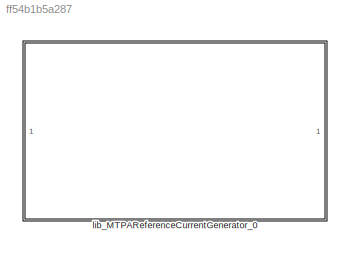
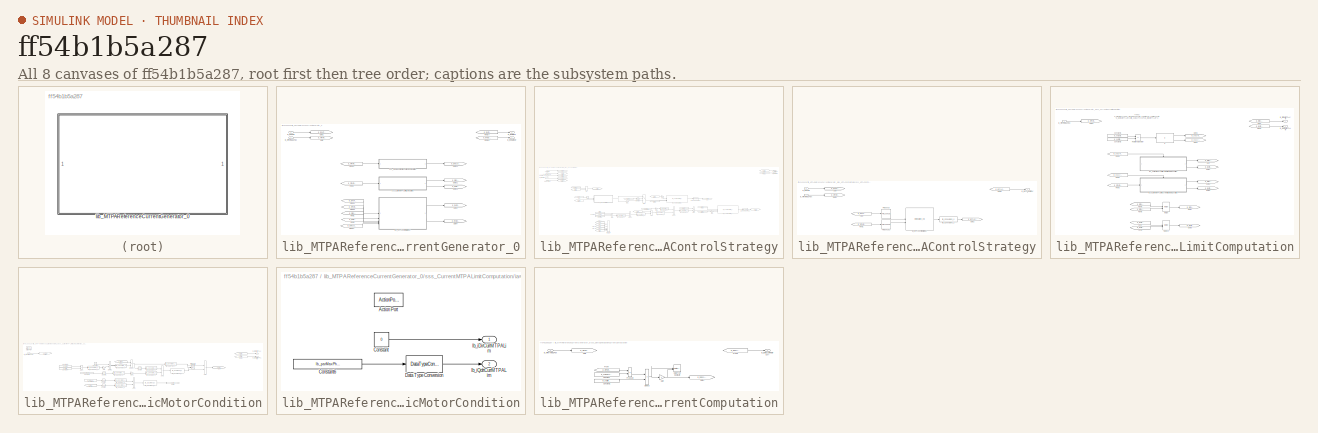
[diagram: thumbnail index - all 8 canvases of the model, root first then tree order]
MODEL slx_ff54b1b5a287
KIND library
CONFIG AbsTol = auto
CONFIG EnableMultiTasking = off
CONFIG FixedStep = auto
CONFIG MaxStep = auto
CONFIG MinStep = auto
CONFIG RelTol = 1e-3
CONFIG SampleTimeConstraint = Unconstrained
CONFIG SolverName = VariableStepAuto
CONFIG StartTime = 0.0
CONFIG StopTime = 10.0
BLOCK [SubSystem] lib_MTPAReferenceCurrentGenerator_0
  LibrarySourceBlock = lib_reference_current_generator/lib_ReferenceCurrentGenerator_0
BLOCK [From] lib_MTPAReferenceCurrentGenerator_0/From1
  GotoTag = lb_iDirCurrMTPALim
BLOCK [From] lib_MTPAReferenceCurrentGenerator_0/From14
  GotoTag = lb_iRefDirCurr
BLOCK [From] lib_MTPAReferenceCurrentGenerator_0/From15
  GotoTag = lb_iRefQdrtCurr
BLOCK [From] lib_MTPAReferenceCurrentGenerator_0/From2
  GotoTag = lb_mfPermMagFlux
BLOCK [From] lib_MTPAReferenceCurrentGenerator_0/From20
  GotoTag = lb_mfPermMagFlux
BLOCK [From] lib_MTPAReferenceCurrentGenerator_0/From21
  GotoTag = lb_tqRefTrq
BLOCK [From] lib_MTPAReferenceCurrentGenerator_0/From3
  GotoTag = lb_iQdrtCurrMTPALim
BLOCK [From] lib_MTPAReferenceCurrentGenerator_0/From42
  GotoTag = lb_mfPermMagFlux
BLOCK [From] lib_MTPAReferenceCurrentGenerator_0/From44
  GotoTag = lb_iDmgzDirCurr
BLOCK [Goto] lib_MTPAReferenceCurrentGenerator_0/Goto
  GotoTag = lb_mfPermMagFlux
BLOCK [Goto] lib_MTPAReferenceCurrentGenerator_0/Goto1
  GotoTag = lb_tqRefTrq
BLOCK [Goto] lib_MTPAReferenceCurrentGenerator_0/Goto21
  GotoTag = lb_iQdrtCurrMTPALim
BLOCK [Goto] lib_MTPAReferenceCurrentGenerator_0/Goto24
  GotoTag = lb_iDmgzDirCurr
BLOCK [Goto] lib_MTPAReferenceCurrentGenerator_0/Goto3
  GotoTag = lb_iRefDirCurr
BLOCK [Goto] lib_MTPAReferenceCurrentGenerator_0/Goto31
  GotoTag = lb_iDirCurrMTPALim
BLOCK [Goto] lib_MTPAReferenceCurrentGenerator_0/Goto4
  GotoTag = lb_iRefQdrtCurr
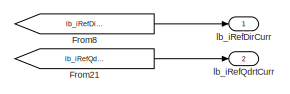
[diagram: lib_MTPAReferenceCurrentGenerator_0/ias_MTPAControlStrategy - part 1/5, top right region]
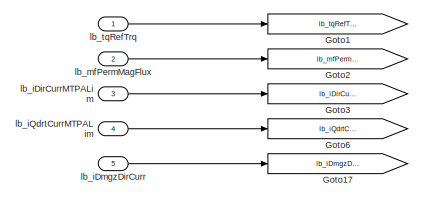
[diagram: lib_MTPAReferenceCurrentGenerator_0/ias_MTPAControlStrategy - part 2/5, top left region]
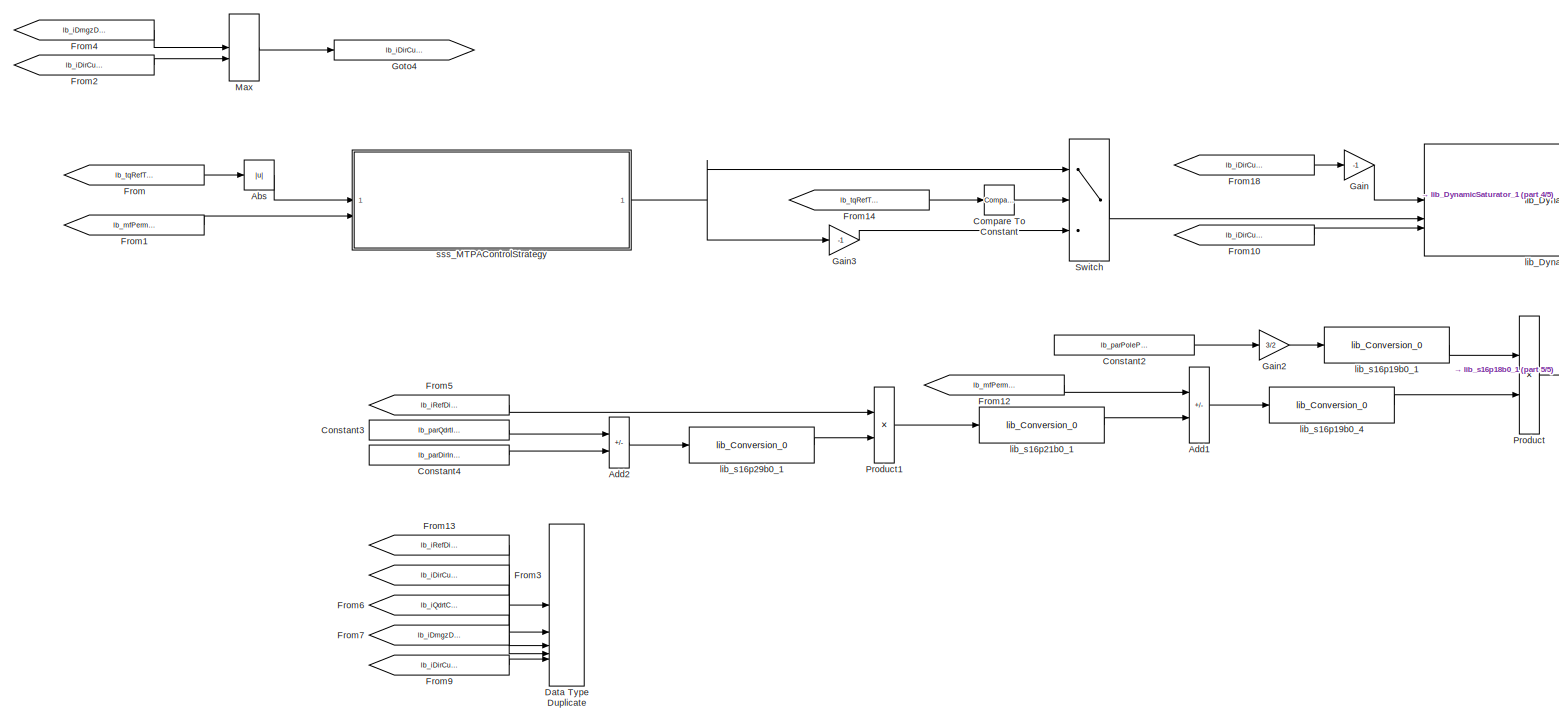
[diagram: lib_MTPAReferenceCurrentGenerator_0/ias_MTPAControlStrategy - part 3/5, center side, full height]
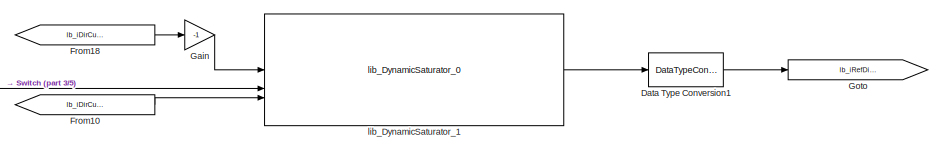
[diagram: lib_MTPAReferenceCurrentGenerator_0/ias_MTPAControlStrategy - part 4/5, central region]
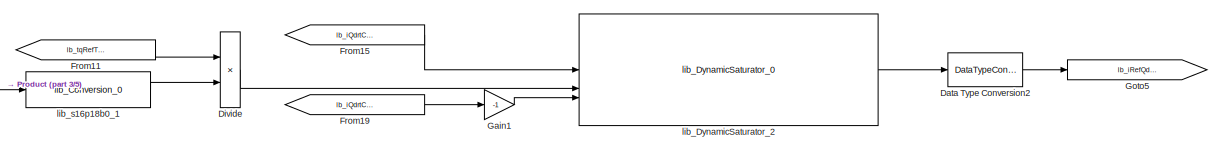
[diagram: lib_MTPAReferenceCurrentGenerator_0/ias_MTPAControlStrategy - part 5/5, middle right region]
BLOCK [SubSystem] lib_MTPAReferenceCurrentGenerator_0/ias_MTPAControlStrategy
  TreatAsAtomicUnit = on
BLOCK [Abs] lib_MTPAReferenceCurrentGenerator_0/ias_MTPAControlStrategy/Abs
  SaturateOnIntegerOverflow = off
BLOCK [Sum] lib_MTPAReferenceCurrentGenerator_0/ias_MTPAControlStrategy/Add1
  IconShape = rectangular
  Inputs = +-
  OutDataTypeStr = Inherit: Inherit via back propagation
  RndMeth = Simplest
BLOCK [Sum] lib_MTPAReferenceCurrentGenerator_0/ias_MTPAControlStrategy/Add2
  IconShape = rectangular
  Inputs = +-
  OutDataTypeStr = Inherit: Inherit via back propagation
  RndMeth = Simplest
BLOCK [Reference] lib_MTPAReferenceCurrentGenerator_0/ias_MTPAControlStrategy/Compare To Constant  REF=simulink/Logic and Bit
Operations/Compare
To Constant
  SourceBlock = simulink/Logic and Bit\nOperations/Compare\nTo Constant
  SourceType = Compare To Constant
BLOCK [Constant] lib_MTPAReferenceCurrentGenerator_0/ias_MTPAControlStrategy/Constant2
  Value = lb_parPolePairNum
BLOCK [Constant] lib_MTPAReferenceCurrentGenerator_0/ias_MTPAControlStrategy/Constant3
  Value = lb_parQdrtIndc
BLOCK [Constant] lib_MTPAReferenceCurrentGenerator_0/ias_MTPAControlStrategy/Constant4
  Value = lb_parDirIndc
BLOCK [DataTypeConversion] lib_MTPAReferenceCurrentGenerator_0/ias_MTPAControlStrategy/Data Type Conversion1
  OutDataTypeStr = lb_parOutpDataType
  RndMeth = Floor
  SaturateOnIntegerOverflow = off
BLOCK [DataTypeConversion] lib_MTPAReferenceCurrentGenerator_0/ias_MTPAControlStrategy/Data Type Conversion2
  OutDataTypeStr = lb_parOutpDataType
  RndMeth = Floor
  SaturateOnIntegerOverflow = off
BLOCK [DataTypeDuplicate] lib_MTPAReferenceCurrentGenerator_0/ias_MTPAControlStrategy/Data Type Duplicate
  NumInputPorts = 5
BLOCK [Product] lib_MTPAReferenceCurrentGenerator_0/ias_MTPAControlStrategy/Divide
  Inputs = */
  OutDataTypeStr = Inherit: Inherit via back propagation
  RndMeth = Simplest
BLOCK [From] lib_MTPAReferenceCurrentGenerator_0/ias_MTPAControlStrategy/From
  GotoTag = lb_tqRefTrq
BLOCK [From] lib_MTPAReferenceCurrentGenerator_0/ias_MTPAControlStrategy/From1
  GotoTag = lb_mfPermMagFlux
BLOCK [From] lib_MTPAReferenceCurrentGenerator_0/ias_MTPAControlStrategy/From10
  GotoTag = lb_iDirCurrMTPALowLim
BLOCK [From] lib_MTPAReferenceCurrentGenerator_0/ias_MTPAControlStrategy/From11
  GotoTag = lb_tqRefTrq
BLOCK [From] lib_MTPAReferenceCurrentGenerator_0/ias_MTPAControlStrategy/From12
  GotoTag = lb_mfPermMagFlux
BLOCK [From] lib_MTPAReferenceCurrentGenerator_0/ias_MTPAControlStrategy/From13
  GotoTag = lb_iRefDirCurr
BLOCK [From] lib_MTPAReferenceCurrentGenerator_0/ias_MTPAControlStrategy/From14
  GotoTag = lb_tqRefTrq
BLOCK [From] lib_MTPAReferenceCurrentGenerator_0/ias_MTPAControlStrategy/From15
  GotoTag = lb_iQdrtCurrMTPALim
BLOCK [From] lib_MTPAReferenceCurrentGenerator_0/ias_MTPAControlStrategy/From18
  GotoTag = lb_iDirCurrMTPALowLim
BLOCK [From] lib_MTPAReferenceCurrentGenerator_0/ias_MTPAControlStrategy/From19
  GotoTag = lb_iQdrtCurrMTPALim
BLOCK [From] lib_MTPAReferenceCurrentGenerator_0/ias_MTPAControlStrategy/From2
  GotoTag = lb_iDirCurrMTPALim
BLOCK [From] lib_MTPAReferenceCurrentGenerator_0/ias_MTPAControlStrategy/From21
  GotoTag = lb_iRefQdrtCurr
BLOCK [From] lib_MTPAReferenceCurrentGenerator_0/ias_MTPAControlStrategy/From3
  GotoTag = lb_iDirCurrMTPALim
BLOCK [From] lib_MTPAReferenceCurrentGenerator_0/ias_MTPAControlStrategy/From4
  GotoTag = lb_iDmgzDirCurr
BLOCK [From] lib_MTPAReferenceCurrentGenerator_0/ias_MTPAControlStrategy/From5
  GotoTag = lb_iRefDirCurr
BLOCK [From] lib_MTPAReferenceCurrentGenerator_0/ias_MTPAControlStrategy/From6
  GotoTag = lb_iQdrtCurrMTPALim
BLOCK [From] lib_MTPAReferenceCurrentGenerator_0/ias_MTPAControlStrategy/From7
  GotoTag = lb_iDmgzDirCurr
BLOCK [From] lib_MTPAReferenceCurrentGenerator_0/ias_MTPAControlStrategy/From8
  GotoTag = lb_iRefDirCurr
BLOCK [From] lib_MTPAReferenceCurrentGenerator_0/ias_MTPAControlStrategy/From9
  GotoTag = lb_iDirCurrMTPALowLim
BLOCK [Gain] lib_MTPAReferenceCurrentGenerator_0/ias_MTPAControlStrategy/Gain
  Gain = -1
  OutDataTypeStr = Inherit: Inherit via back propagation
  RndMeth = Simplest
BLOCK [Gain] lib_MTPAReferenceCurrentGenerator_0/ias_MTPAControlStrategy/Gain1
  Gain = -1
  OutDataTypeStr = Inherit: Inherit via back propagation
  RndMeth = Simplest
BLOCK [Gain] lib_MTPAReferenceCurrentGenerator_0/ias_MTPAControlStrategy/Gain2
  Gain = 3/2
  OutDataTypeStr = Inherit: Inherit via back propagation
  RndMeth = Simplest
BLOCK [Gain] lib_MTPAReferenceCurrentGenerator_0/ias_MTPAControlStrategy/Gain3
  Gain = -1
  OutDataTypeStr = Inherit: Same as input
BLOCK [Goto] lib_MTPAReferenceCurrentGenerator_0/ias_MTPAControlStrategy/Goto
  GotoTag = lb_iRefDirCurr
BLOCK [Goto] lib_MTPAReferenceCurrentGenerator_0/ias_MTPAControlStrategy/Goto1
  GotoTag = lb_tqRefTrq
BLOCK [Goto] lib_MTPAReferenceCurrentGenerator_0/ias_MTPAControlStrategy/Goto17
  GotoTag = lb_iDmgzDirCurr
BLOCK [Goto] lib_MTPAReferenceCurrentGenerator_0/ias_MTPAControlStrategy/Goto2
  GotoTag = lb_mfPermMagFlux
BLOCK [Goto] lib_MTPAReferenceCurrentGenerator_0/ias_MTPAControlStrategy/Goto3
  GotoTag = lb_iDirCurrMTPALim
BLOCK [Goto] lib_MTPAReferenceCurrentGenerator_0/ias_MTPAControlStrategy/Goto4
  GotoTag = lb_iDirCurrMTPALowLim
BLOCK [Goto] lib_MTPAReferenceCurrentGenerator_0/ias_MTPAControlStrategy/Goto5
  GotoTag = lb_iRefQdrtCurr
BLOCK [Goto] lib_MTPAReferenceCurrentGenerator_0/ias_MTPAControlStrategy/Goto6
  GotoTag = lb_iQdrtCurrMTPALim
BLOCK [MinMax] lib_MTPAReferenceCurrentGenerator_0/ias_MTPAControlStrategy/Max
  Function = max
  Inputs = 2
  OutDataTypeStr = Inherit: Inherit via back propagation
BLOCK [Product] lib_MTPAReferenceCurrentGenerator_0/ias_MTPAControlStrategy/Product
  OutDataTypeStr = Inherit: Inherit via back propagation
  RndMeth = Simplest
BLOCK [Product] lib_MTPAReferenceCurrentGenerator_0/ias_MTPAControlStrategy/Product1
  OutDataTypeStr = Inherit: Inherit via back propagation
  RndMeth = Simplest
BLOCK [Switch] lib_MTPAReferenceCurrentGenerator_0/ias_MTPAControlStrategy/Switch
  Criteria = u2 ~= 0
  InputSameDT = off
  SaturateOnIntegerOverflow = off
BLOCK [Inport] lib_MTPAReferenceCurrentGenerator_0/ias_MTPAControlStrategy/lb_iDirCurrMTPALim
  Port = 3
BLOCK [Inport] lib_MTPAReferenceCurrentGenerator_0/ias_MTPAControlStrategy/lb_iDmgzDirCurr
  Port = 5
BLOCK [Inport] lib_MTPAReferenceCurrentGenerator_0/ias_MTPAControlStrategy/lb_iQdrtCurrMTPALim
  Port = 4
BLOCK [Outport] lib_MTPAReferenceCurrentGenerator_0/ias_MTPAControlStrategy/lb_iRefDirCurr
BLOCK [Outport] lib_MTPAReferenceCurrentGenerator_0/ias_MTPAControlStrategy/lb_iRefQdrtCurr
  Port = 2
BLOCK [Inport] lib_MTPAReferenceCurrentGenerator_0/ias_MTPAControlStrategy/lb_mfPermMagFlux
  Port = 2
BLOCK [Inport] lib_MTPAReferenceCurrentGenerator_0/ias_MTPAControlStrategy/lb_tqRefTrq
BLOCK [Reference] lib_MTPAReferenceCurrentGenerator_0/ias_MTPAControlStrategy/lib_DynamicSaturator_1  REF=lib_dynamic_saturator/lib_DynamicSaturator_0  (lib defined in slx_fcc78f0d1256)
  SourceBlock = lib_dynamic_saturator/lib_DynamicSaturator_0
BLOCK [Reference] lib_MTPAReferenceCurrentGenerator_0/ias_MTPAControlStrategy/lib_DynamicSaturator_2  REF=lib_dynamic_saturator/lib_DynamicSaturator_0  (lib defined in slx_fcc78f0d1256)
  SourceBlock = lib_dynamic_saturator/lib_DynamicSaturator_0
BLOCK [Reference] lib_MTPAReferenceCurrentGenerator_0/ias_MTPAControlStrategy/lib_s16p18b0_1  REF=lib_conversion/lib_Conversion_0  (lib defined in slx_7f5c0202220d)
  SourceBlock = lib_conversion/lib_Conversion_0
BLOCK [Reference] lib_MTPAReferenceCurrentGenerator_0/ias_MTPAControlStrategy/lib_s16p19b0_1  REF=lib_conversion/lib_Conversion_0  (lib defined in slx_7f5c0202220d)
  SourceBlock = lib_conversion/lib_Conversion_0
BLOCK [Reference] lib_MTPAReferenceCurrentGenerator_0/ias_MTPAControlStrategy/lib_s16p19b0_4  REF=lib_conversion/lib_Conversion_0  (lib defined in slx_7f5c0202220d)
  SourceBlock = lib_conversion/lib_Conversion_0
BLOCK [Reference] lib_MTPAReferenceCurrentGenerator_0/ias_MTPAControlStrategy/lib_s16p21b0_1  REF=lib_conversion/lib_Conversion_0  (lib defined in slx_7f5c0202220d)
  SourceBlock = lib_conversion/lib_Conversion_0
BLOCK [Reference] lib_MTPAReferenceCurrentGenerator_0/ias_MTPAControlStrategy/lib_s16p29b0_1  REF=lib_conversion/lib_Conversion_0  (lib defined in slx_7f5c0202220d)
  SourceBlock = lib_conversion/lib_Conversion_0
BLOCK [SubSystem] lib_MTPAReferenceCurrentGenerator_0/ias_MTPAControlStrategy/sss_MTPAControlStrategy
BLOCK [From] lib_MTPAReferenceCurrentGenerator_0/ias_MTPAControlStrategy/sss_MTPAControlStrategy/From
  GotoTag = lb_tqRefTrq
BLOCK [From] lib_MTPAReferenceCurrentGenerator_0/ias_MTPAControlStrategy/sss_MTPAControlStrategy/From1
  GotoTag = lb_mfPermMagFlux
BLOCK [From] lib_MTPAReferenceCurrentGenerator_0/ias_MTPAControlStrategy/sss_MTPAControlStrategy/From2
  GotoTag = lb_iMTPARefDirCurr
BLOCK [Goto] lib_MTPAReferenceCurrentGenerator_0/ias_MTPAControlStrategy/sss_MTPAControlStrategy/Goto
  GotoTag = lb_tqRefTrq
BLOCK [Goto] lib_MTPAReferenceCurrentGenerator_0/ias_MTPAControlStrategy/sss_MTPAControlStrategy/Goto1
  GotoTag = lb_mfPermMagFlux
BLOCK [Goto] lib_MTPAReferenceCurrentGenerator_0/ias_MTPAControlStrategy/sss_MTPAControlStrategy/Goto2
  GotoTag = lb_iMTPARefDirCurr
BLOCK [PreLookup] lib_MTPAReferenceCurrentGenerator_0/ias_MTPAControlStrategy/sss_MTPAControlStrategy/Prelookup
  BreakpointsData = [10:10:110]
  BreakpointsFirstPoint = lb_parMTPATrqDataFrstVal
  BreakpointsNumPoints = lb_parTrqSampNum
  BreakpointsSpacing = lb_parMTPATrqDataStepVal
  BreakpointsSpecification = Even spacing
  FractionDataTypeStr = fixdt(0,16,2^-15,0)
  IndexDataTypeStr = uint16
  InputPortMap = u0
  OutputSelection = Index and fraction as bus
  RemoveProtectionInput = on
  RndMeth = Simplest
BLOCK [PreLookup] lib_MTPAReferenceCurrentGenerator_0/ias_MTPAControlStrategy/sss_MTPAControlStrategy/Prelookup1
  BreakpointsData = [10:10:110]
  BreakpointsFirstPoint = lb_parMTPAPermMagFluxDataFrstVal
  BreakpointsNumPoints = lb_parTempSampNum
  BreakpointsSpacing = lb_parMTPAPermMagFluxDataStepVal
  BreakpointsSpecification = Even spacing
  FractionDataTypeStr = fixdt(0,16,2^-15,0)
  IndexDataTypeStr = uint16
  InputPortMap = u0
  OutputSelection = Index and fraction as bus
  RemoveProtectionInput = on
  RndMeth = Simplest
BLOCK [Outport] lib_MTPAReferenceCurrentGenerator_0/ias_MTPAControlStrategy/sss_MTPAControlStrategy/lb_iMTPARefDirCurr
BLOCK [Inport] lib_MTPAReferenceCurrentGenerator_0/ias_MTPAControlStrategy/sss_MTPAControlStrategy/lb_mfPermMagFlux
  Port = 2
BLOCK [Inport] lib_MTPAReferenceCurrentGenerator_0/ias_MTPAControlStrategy/sss_MTPAControlStrategy/lb_tqRefTrq
BLOCK [Reference] lib_MTPAReferenceCurrentGenerator_0/ias_MTPAControlStrategy/sss_MTPAControlStrategy/lib_Conversion_1  REF=lib_conversion/lib_Conversion_0  (lib defined in slx_7f5c0202220d)
  SourceBlock = lib_conversion/lib_Conversion_0
BLOCK [Interpolation_n-D] lib_MTPAReferenceCurrentGenerator_0/ias_MTPAControlStrategy/sss_MTPAControlStrategy/lkt_MTPAControlStrategy
  ExtrapMethod = Clip
  InputPortMap = u0,u1
  IntermediateResultsDataTypeStr = Inherit: Inherit via internal rule
  InternalRulePriority = Speed
  OutDataTypeStr = Inherit: Inherit via back propagation
  RemoveProtectionIndex = on
  RequireIndexFractionAsBus = on
  RndMeth = Simplest
  Table = lb_parMTPA2DLktMtrx
BLOCK [Outport] lib_MTPAReferenceCurrentGenerator_0/lb_iRefDirCurr
BLOCK [Outport] lib_MTPAReferenceCurrentGenerator_0/lb_iRefQdrtCurr
  Port = 2
BLOCK [Inport] lib_MTPAReferenceCurrentGenerator_0/lb_mfPermMagFlux
  Port = 2
BLOCK [Inport] lib_MTPAReferenceCurrentGenerator_0/lb_tqRefTrq
BLOCK [SubSystem] lib_MTPAReferenceCurrentGenerator_0/sss_CurrentMTPALimitComputation
BLOCK [Constant] lib_MTPAReferenceCurrentGenerator_0/sss_CurrentMTPALimitComputation/Constant1
  Value = lb_parQdrtIndc
BLOCK [Constant] lib_MTPAReferenceCurrentGenerator_0/sss_CurrentMTPALimitComputation/Constant2
  Value = lb_parDirIndc
BLOCK [From] lib_MTPAReferenceCurrentGenerator_0/sss_CurrentMTPALimitComputation/From
  GotoTag = lb_iDirCurrMTPALim
BLOCK [From] lib_MTPAReferenceCurrentGenerator_0/sss_CurrentMTPALimitComputation/From1
  GotoTag = lb_bolSymMotEnbl
BLOCK [From] lib_MTPAReferenceCurrentGenerator_0/sss_CurrentMTPALimitComputation/From2
  GotoTag = lb_bolAsymMotEnbl
BLOCK [From] lib_MTPAReferenceCurrentGenerator_0/sss_CurrentMTPALimitComputation/From3
  GotoTag = lb_mfPermMagFlux
BLOCK [From] lib_MTPAReferenceCurrentGenerator_0/sss_CurrentMTPALimitComputation/From4
  GotoTag = lb_iQdrtCurrMTPALim
BLOCK [From] lib_MTPAReferenceCurrentGenerator_0/sss_CurrentMTPALimitComputation/From5
  GotoTag = lb_iDirCurrMTPALimAsym
BLOCK [From] lib_MTPAReferenceCurrentGenerator_0/sss_CurrentMTPALimitComputation/From6
  GotoTag = lb_iDirCurrMTPALimSym
BLOCK [From] lib_MTPAReferenceCurrentGenerator_0/sss_CurrentMTPALimitComputation/From7
  GotoTag = lb_iQdrtCurrMTPALimSym
BLOCK [From] lib_MTPAReferenceCurrentGenerator_0/sss_CurrentMTPALimitComputation/From8
  GotoTag = lb_iQdrtCurrMTPALimAsym
BLOCK [Goto] lib_MTPAReferenceCurrentGenerator_0/sss_CurrentMTPALimitComputation/Goto
  GotoTag = lb_iDirCurrMTPALimSym
BLOCK [Goto] lib_MTPAReferenceCurrentGenerator_0/sss_CurrentMTPALimitComputation/Goto1
  GotoTag = lb_iQdrtCurrMTPALimSym
BLOCK [Goto] lib_MTPAReferenceCurrentGenerator_0/sss_CurrentMTPALimitComputation/Goto2
  GotoTag = lb_mfPermMagFlux
BLOCK [Goto] lib_MTPAReferenceCurrentGenerator_0/sss_CurrentMTPALimitComputation/Goto3
  GotoTag = lb_bolSymMotEnbl
BLOCK [Goto] lib_MTPAReferenceCurrentGenerator_0/sss_CurrentMTPALimitComputation/Goto4
  GotoTag = lb_bolAsymMotEnbl
BLOCK [Goto] lib_MTPAReferenceCurrentGenerator_0/sss_CurrentMTPALimitComputation/Goto5
  GotoTag = lb_iDirCurrMTPALimAsym
BLOCK [Goto] lib_MTPAReferenceCurrentGenerator_0/sss_CurrentMTPALimitComputation/Goto6
  GotoTag = lb_iQdrtCurrMTPALimAsym
BLOCK [Goto] lib_MTPAReferenceCurrentGenerator_0/sss_CurrentMTPALimitComputation/Goto7
  GotoTag = lb_iDirCurrMTPALim
BLOCK [Goto] lib_MTPAReferenceCurrentGenerator_0/sss_CurrentMTPALimitComputation/Goto8
  GotoTag = lb_iQdrtCurrMTPALim
BLOCK [If] lib_MTPAReferenceCurrentGenerator_0/sss_CurrentMTPALimitComputation/If
  IfExpression = u1
BLOCK [Merge] lib_MTPAReferenceCurrentGenerator_0/sss_CurrentMTPALimitComputation/Merge
BLOCK [Merge] lib_MTPAReferenceCurrentGenerator_0/sss_CurrentMTPALimitComputation/Merge1
BLOCK [RelationalOperator] lib_MTPAReferenceCurrentGenerator_0/sss_CurrentMTPALimitComputation/Relational Operator
  InputSameDT = off
  Operator = ==
  OutDataTypeStr = boolean
  RndMeth = Simplest
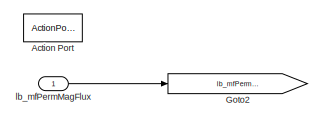
[diagram: lib_MTPAReferenceCurrentGenerator_0/sss_CurrentMTPALimitComputation/ias_CurrentMTPALimitAsymmetricMotorCondition - part 1/5, top left region]
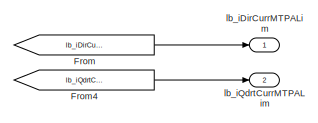
[diagram: lib_MTPAReferenceCurrentGenerator_0/sss_CurrentMTPALimitComputation/ias_CurrentMTPALimitAsymmetricMotorCondition - part 2/5, top right region]
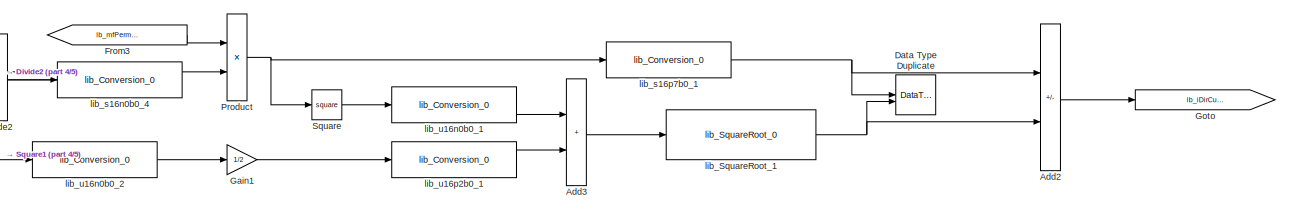
[diagram: lib_MTPAReferenceCurrentGenerator_0/sss_CurrentMTPALimitComputation/ias_CurrentMTPALimitAsymmetricMotorCondition - part 3/5, central region]
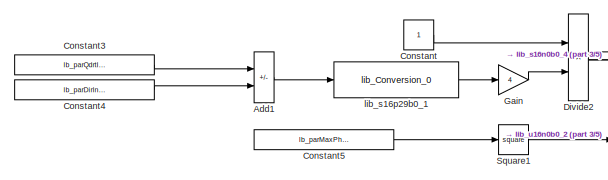
[diagram: lib_MTPAReferenceCurrentGenerator_0/sss_CurrentMTPALimitComputation/ias_CurrentMTPALimitAsymmetricMotorCondition - part 4/5, middle left region]
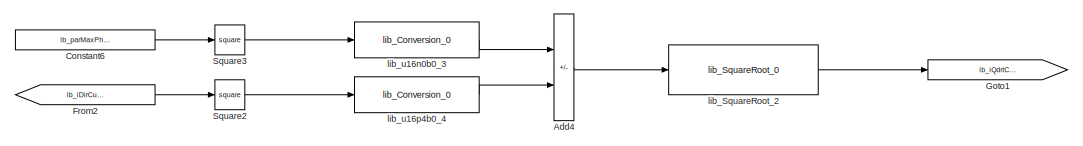
[diagram: lib_MTPAReferenceCurrentGenerator_0/sss_CurrentMTPALimitComputation/ias_CurrentMTPALimitAsymmetricMotorCondition - part 5/5, bottom center region]
BLOCK [SubSystem] lib_MTPAReferenceCurrentGenerator_0/sss_CurrentMTPALimitComputation/ias_CurrentMTPALimitAsymmetricMotorCondition
  TreatAsAtomicUnit = on
BLOCK [ActionPort] lib_MTPAReferenceCurrentGenerator_0/sss_CurrentMTPALimitComputation/ias_CurrentMTPALimitAsymmetricMotorCondition/Action Port
BLOCK [Sum] lib_MTPAReferenceCurrentGenerator_0/sss_CurrentMTPALimitComputation/ias_CurrentMTPALimitAsymmetricMotorCondition/Add1
  IconShape = rectangular
  Inputs = +-
  OutDataTypeStr = Inherit: Inherit via back propagation
  RndMeth = Simplest
BLOCK [Sum] lib_MTPAReferenceCurrentGenerator_0/sss_CurrentMTPALimitComputation/ias_CurrentMTPALimitAsymmetricMotorCondition/Add2
  IconShape = rectangular
  Inputs = +-
  OutDataTypeStr = Inherit: Inherit via back propagation
  RndMeth = Simplest
BLOCK [Sum] lib_MTPAReferenceCurrentGenerator_0/sss_CurrentMTPALimitComputation/ias_CurrentMTPALimitAsymmetricMotorCondition/Add3
  IconShape = rectangular
  OutDataTypeStr = Inherit: Same as first input
  RndMeth = Simplest
BLOCK [Sum] lib_MTPAReferenceCurrentGenerator_0/sss_CurrentMTPALimitComputation/ias_CurrentMTPALimitAsymmetricMotorCondition/Add4
  IconShape = rectangular
  Inputs = +-
  OutDataTypeStr = Inherit: Same as first input
  RndMeth = Simplest
BLOCK [Constant] lib_MTPAReferenceCurrentGenerator_0/sss_CurrentMTPALimitComputation/ias_CurrentMTPALimitAsymmetricMotorCondition/Constant
  OutDataTypeStr = uint16
BLOCK [Constant] lib_MTPAReferenceCurrentGenerator_0/sss_CurrentMTPALimitComputation/ias_CurrentMTPALimitAsymmetricMotorCondition/Constant3
  Value = lb_parQdrtIndc
BLOCK [Constant] lib_MTPAReferenceCurrentGenerator_0/sss_CurrentMTPALimitComputation/ias_CurrentMTPALimitAsymmetricMotorCondition/Constant4
  Value = lb_parDirIndc
BLOCK [Constant] lib_MTPAReferenceCurrentGenerator_0/sss_CurrentMTPALimitComputation/ias_CurrentMTPALimitAsymmetricMotorCondition/Constant5
  Value = lb_parMaxPhsCurr
BLOCK [Constant] lib_MTPAReferenceCurrentGenerator_0/sss_CurrentMTPALimitComputation/ias_CurrentMTPALimitAsymmetricMotorCondition/Constant6
  Value = lb_parMaxPhsCurr
BLOCK [DataTypeDuplicate] lib_MTPAReferenceCurrentGenerator_0/sss_CurrentMTPALimitComputation/ias_CurrentMTPALimitAsymmetricMotorCondition/Data Type Duplicate
BLOCK [Product] lib_MTPAReferenceCurrentGenerator_0/sss_CurrentMTPALimitComputation/ias_CurrentMTPALimitAsymmetricMotorCondition/Divide2
  Inputs = */
  OutDataTypeStr = Inherit: Inherit via back propagation
  RndMeth = Simplest
BLOCK [From] lib_MTPAReferenceCurrentGenerator_0/sss_CurrentMTPALimitComputation/ias_CurrentMTPALimitAsymmetricMotorCondition/From
  GotoTag = lb_iDirCurrMTPALim
BLOCK [From] lib_MTPAReferenceCurrentGenerator_0/sss_CurrentMTPALimitComputation/ias_CurrentMTPALimitAsymmetricMotorCondition/From2
  GotoTag = lb_iDirCurrMTPALim
BLOCK [From] lib_MTPAReferenceCurrentGenerator_0/sss_CurrentMTPALimitComputation/ias_CurrentMTPALimitAsymmetricMotorCondition/From3
  GotoTag = lb_mfPermMagFlux
BLOCK [From] lib_MTPAReferenceCurrentGenerator_0/sss_CurrentMTPALimitComputation/ias_CurrentMTPALimitAsymmetricMotorCondition/From4
  GotoTag = lb_iQdrtCurrMTPALim
BLOCK [Gain] lib_MTPAReferenceCurrentGenerator_0/sss_CurrentMTPALimitComputation/ias_CurrentMTPALimitAsymmetricMotorCondition/Gain
  Gain = 4
  OutDataTypeStr = Inherit: Same as input
  RndMeth = Simplest
BLOCK [Gain] lib_MTPAReferenceCurrentGenerator_0/sss_CurrentMTPALimitComputation/ias_CurrentMTPALimitAsymmetricMotorCondition/Gain1
  Gain = 1/2
  OutDataTypeStr = Inherit: Inherit via back propagation
  RndMeth = Simplest
BLOCK [Goto] lib_MTPAReferenceCurrentGenerator_0/sss_CurrentMTPALimitComputation/ias_CurrentMTPALimitAsymmetricMotorCondition/Goto
  GotoTag = lb_iDirCurrMTPALim
BLOCK [Goto] lib_MTPAReferenceCurrentGenerator_0/sss_CurrentMTPALimitComputation/ias_CurrentMTPALimitAsymmetricMotorCondition/Goto1
  GotoTag = lb_iQdrtCurrMTPALim
BLOCK [Goto] lib_MTPAReferenceCurrentGenerator_0/sss_CurrentMTPALimitComputation/ias_CurrentMTPALimitAsymmetricMotorCondition/Goto2
  GotoTag = lb_mfPermMagFlux
BLOCK [Product] lib_MTPAReferenceCurrentGenerator_0/sss_CurrentMTPALimitComputation/ias_CurrentMTPALimitAsymmetricMotorCondition/Product
  OutDataTypeStr = Inherit: Inherit via back propagation
BLOCK [Math] lib_MTPAReferenceCurrentGenerator_0/sss_CurrentMTPALimitComputation/ias_CurrentMTPALimitAsymmetricMotorCondition/Square
  Operator = square
  OutDataTypeStr = Inherit: Inherit via back propagation
  RndMeth = Simplest
  SignedPower = on
BLOCK [Math] lib_MTPAReferenceCurrentGenerator_0/sss_CurrentMTPALimitComputation/ias_CurrentMTPALimitAsymmetricMotorCondition/Square1
  Operator = square
  OutDataTypeStr = Inherit: Inherit via back propagation
  RndMeth = Simplest
  SignedPower = on
BLOCK [Math] lib_MTPAReferenceCurrentGenerator_0/sss_CurrentMTPALimitComputation/ias_CurrentMTPALimitAsymmetricMotorCondition/Square2
  Operator = square
  OutDataTypeStr = Inherit: Inherit via back propagation
  RndMeth = Simplest
  SignedPower = on
BLOCK [Math] lib_MTPAReferenceCurrentGenerator_0/sss_CurrentMTPALimitComputation/ias_CurrentMTPALimitAsymmetricMotorCondition/Square3
  Operator = square
  OutDataTypeStr = Inherit: Inherit via back propagation
  RndMeth = Simplest
  SignedPower = on
BLOCK [Outport] lib_MTPAReferenceCurrentGenerator_0/sss_CurrentMTPALimitComputation/ias_CurrentMTPALimitAsymmetricMotorCondition/lb_iDirCurrMTPALim
BLOCK [Outport] lib_MTPAReferenceCurrentGenerator_0/sss_CurrentMTPALimitComputation/ias_CurrentMTPALimitAsymmetricMotorCondition/lb_iQdrtCurrMTPALim
  Port = 2
BLOCK [Inport] lib_MTPAReferenceCurrentGenerator_0/sss_CurrentMTPALimitComputation/ias_CurrentMTPALimitAsymmetricMotorCondition/lb_mfPermMagFlux
BLOCK [Reference] lib_MTPAReferenceCurrentGenerator_0/sss_CurrentMTPALimitComputation/ias_CurrentMTPALimitAsymmetricMotorCondition/lib_SquareRoot_1  REF=lib_square_root/lib_SquareRoot_0
  SourceBlock = lib_square_root/lib_SquareRoot_0
BLOCK [Reference] lib_MTPAReferenceCurrentGenerator_0/sss_CurrentMTPALimitComputation/ias_CurrentMTPALimitAsymmetricMotorCondition/lib_SquareRoot_2  REF=lib_square_root/lib_SquareRoot_0
  SourceBlock = lib_square_root/lib_SquareRoot_0
BLOCK [Reference] lib_MTPAReferenceCurrentGenerator_0/sss_CurrentMTPALimitComputation/ias_CurrentMTPALimitAsymmetricMotorCondition/lib_s16n0b0_4  REF=lib_conversion/lib_Conversion_0  (lib defined in slx_7f5c0202220d)
  SourceBlock = lib_conversion/lib_Conversion_0
BLOCK [Reference] lib_MTPAReferenceCurrentGenerator_0/sss_CurrentMTPALimitComputation/ias_CurrentMTPALimitAsymmetricMotorCondition/lib_s16p29b0_1  REF=lib_conversion/lib_Conversion_0  (lib defined in slx_7f5c0202220d)
  SourceBlock = lib_conversion/lib_Conversion_0
BLOCK [Reference] lib_MTPAReferenceCurrentGenerator_0/sss_CurrentMTPALimitComputation/ias_CurrentMTPALimitAsymmetricMotorCondition/lib_s16p7b0_1  REF=lib_conversion/lib_Conversion_0  (lib defined in slx_7f5c0202220d)
  SourceBlock = lib_conversion/lib_Conversion_0
BLOCK [Reference] lib_MTPAReferenceCurrentGenerator_0/sss_CurrentMTPALimitComputation/ias_CurrentMTPALimitAsymmetricMotorCondition/lib_u16n0b0_1  REF=lib_conversion/lib_Conversion_0  (lib defined in slx_7f5c0202220d)
  SourceBlock = lib_conversion/lib_Conversion_0
BLOCK [Reference] lib_MTPAReferenceCurrentGenerator_0/sss_CurrentMTPALimitComputation/ias_CurrentMTPALimitAsymmetricMotorCondition/lib_u16n0b0_2  REF=lib_conversion/lib_Conversion_0  (lib defined in slx_7f5c0202220d)
  SourceBlock = lib_conversion/lib_Conversion_0
BLOCK [Reference] lib_MTPAReferenceCurrentGenerator_0/sss_CurrentMTPALimitComputation/ias_CurrentMTPALimitAsymmetricMotorCondition/lib_u16n0b0_3  REF=lib_conversion/lib_Conversion_0  (lib defined in slx_7f5c0202220d)
  SourceBlock = lib_conversion/lib_Conversion_0
BLOCK [Reference] lib_MTPAReferenceCurrentGenerator_0/sss_CurrentMTPALimitComputation/ias_CurrentMTPALimitAsymmetricMotorCondition/lib_u16p2b0_1  REF=lib_conversion/lib_Conversion_0  (lib defined in slx_7f5c0202220d)
  SourceBlock = lib_conversion/lib_Conversion_0
BLOCK [Reference] lib_MTPAReferenceCurrentGenerator_0/sss_CurrentMTPALimitComputation/ias_CurrentMTPALimitAsymmetricMotorCondition/lib_u16p4b0_4  REF=lib_conversion/lib_Conversion_0  (lib defined in slx_7f5c0202220d)
  SourceBlock = lib_conversion/lib_Conversion_0
BLOCK [SubSystem] lib_MTPAReferenceCurrentGenerator_0/sss_CurrentMTPALimitComputation/ias_CurrentMTPALimitSymmetricMotorCondition
  TreatAsAtomicUnit = on
BLOCK [ActionPort] lib_MTPAReferenceCurrentGenerator_0/sss_CurrentMTPALimitComputation/ias_CurrentMTPALimitSymmetricMotorCondition/Action Port
BLOCK [Constant] lib_MTPAReferenceCurrentGenerator_0/sss_CurrentMTPALimitComputation/ias_CurrentMTPALimitSymmetricMotorCondition/Constant
  OutDataTypeStr = Inherit: Inherit via back propagation
  Value = 0
BLOCK [Constant] lib_MTPAReferenceCurrentGenerator_0/sss_CurrentMTPALimitComputation/ias_CurrentMTPALimitSymmetricMotorCondition/Constant6
  Value = lb_parMaxPhsCurr
BLOCK [DataTypeConversion] lib_MTPAReferenceCurrentGenerator_0/sss_CurrentMTPALimitComputation/ias_CurrentMTPALimitSymmetricMotorCondition/Data Type Conversion
  RndMeth = Floor
  SaturateOnIntegerOverflow = off
BLOCK [Outport] lib_MTPAReferenceCurrentGenerator_0/sss_CurrentMTPALimitComputation/ias_CurrentMTPALimitSymmetricMotorCondition/lb_iDirCurrMTPALim
BLOCK [Outport] lib_MTPAReferenceCurrentGenerator_0/sss_CurrentMTPALimitComputation/ias_CurrentMTPALimitSymmetricMotorCondition/lb_iQdrtCurrMTPALim
  Port = 2
BLOCK [Outport] lib_MTPAReferenceCurrentGenerator_0/sss_CurrentMTPALimitComputation/lb_iDirCurrMTPALim
BLOCK [Outport] lib_MTPAReferenceCurrentGenerator_0/sss_CurrentMTPALimitComputation/lb_iQdrtCurrMTPALim
  Port = 2
BLOCK [Inport] lib_MTPAReferenceCurrentGenerator_0/sss_CurrentMTPALimitComputation/lb_mfPermMagFlux
BLOCK [SubSystem] lib_MTPAReferenceCurrentGenerator_0/sss_DemagnetizationCurrentComputation
BLOCK [Constant] lib_MTPAReferenceCurrentGenerator_0/sss_DemagnetizationCurrentComputation/Constant
  Value = lb_parDmgzFact
BLOCK [Constant] lib_MTPAReferenceCurrentGenerator_0/sss_DemagnetizationCurrentComputation/Constant1
  Value = lb_parDirIndc
BLOCK [DataTypeDuplicate] lib_MTPAReferenceCurrentGenerator_0/sss_DemagnetizationCurrentComputation/Data Type Duplicate
BLOCK [Product] lib_MTPAReferenceCurrentGenerator_0/sss_DemagnetizationCurrentComputation/Divide3
  Inputs = */
  OutDataTypeStr = Inherit: Inherit via back propagation
  RndMeth = Simplest
BLOCK [From] lib_MTPAReferenceCurrentGenerator_0/sss_DemagnetizationCurrentComputation/From
  GotoTag = lb_mfPermMagFlux
BLOCK [From] lib_MTPAReferenceCurrentGenerator_0/sss_DemagnetizationCurrentComputation/From1
  GotoTag = lb_iDmgzLimRefDirCurr
BLOCK [Gain] lib_MTPAReferenceCurrentGenerator_0/sss_DemagnetizationCurrentComputation/Gain
  Gain = -1
  OutDataTypeStr = Inherit: Inherit via back propagation
  RndMeth = Simplest
BLOCK [Goto] lib_MTPAReferenceCurrentGenerator_0/sss_DemagnetizationCurrentComputation/Goto
  GotoTag = lb_mfPermMagFlux
BLOCK [Goto] lib_MTPAReferenceCurrentGenerator_0/sss_DemagnetizationCurrentComputation/Goto1
  GotoTag = lb_iDmgzLimRefDirCurr
BLOCK [Product] lib_MTPAReferenceCurrentGenerator_0/sss_DemagnetizationCurrentComputation/Product2
  OutDataTypeStr = Inherit: Same as first input
  RndMeth = Simplest
BLOCK [Outport] lib_MTPAReferenceCurrentGenerator_0/sss_DemagnetizationCurrentComputation/lb_iDmgzLimRefDirCurr
BLOCK [Inport] lib_MTPAReferenceCurrentGenerator_0/sss_DemagnetizationCurrentComputation/lb_mfPermMagFlux
ANNOTATION lib_MTPAReferenceCurrentGenerator_0/sss_CurrentMTPALimitComputation: Formula: lb_iDirCurrMTPALim = lb_mfPermMagFlux/4/(lb_parQdrtIndc-lb_parDirIndc) - sqrt((lb_mfPermMagFlux/4/(lb_parQdrtIndc-lb_parDirIndc))^2 + 1/2*lb_parMaxPhsCurr^2 lb_iQdrtCurrMTPALim = sqrt(lb_parMaxPhsCurr^2 - lb_iDirCurrMTPALim^2)
LINE lib_MTPAReferenceCurrentGenerator_0/From14:1 -> lib_MTPAReferenceCurrentGenerator_0/lb_iRefDirCurr:1
LINE lib_MTPAReferenceCurrentGenerator_0/From15:1 -> lib_MTPAReferenceCurrentGenerator_0/lb_iRefQdrtCurr:1
LINE lib_MTPAReferenceCurrentGenerator_0/From1:1 -> lib_MTPAReferenceCurrentGenerator_0/ias_MTPAControlStrategy:3
LINE lib_MTPAReferenceCurrentGenerator_0/From20:1 -> lib_MTPAReferenceCurrentGenerator_0/ias_MTPAControlStrategy:2
LINE lib_MTPAReferenceCurrentGenerator_0/From21:1 -> lib_MTPAReferenceCurrentGenerator_0/ias_MTPAControlStrategy:1
LINE lib_MTPAReferenceCurrentGenerator_0/From2:1 -> lib_MTPAReferenceCurrentGenerator_0/sss_CurrentMTPALimitComputation:1
LINE lib_MTPAReferenceCurrentGenerator_0/From3:1 -> lib_MTPAReferenceCurrentGenerator_0/ias_MTPAControlStrategy:4
LINE lib_MTPAReferenceCurrentGenerator_0/From42:1 -> lib_MTPAReferenceCurrentGenerator_0/sss_DemagnetizationCurrentComputation:1
LINE lib_MTPAReferenceCurrentGenerator_0/From44:1 -> lib_MTPAReferenceCurrentGenerator_0/ias_MTPAControlStrategy:5
LINE lib_MTPAReferenceCurrentGenerator_0/ias_MTPAControlStrategy/Abs:1 -> lib_MTPAReferenceCurrentGenerator_0/ias_MTPAControlStrategy/sss_MTPAControlStrategy:1
LINE lib_MTPAReferenceCurrentGenerator_0/ias_MTPAControlStrategy/Add1:1 -> lib_MTPAReferenceCurrentGenerator_0/ias_MTPAControlStrategy/lib_s16p19b0_4:1
LINE lib_MTPAReferenceCurrentGenerator_0/ias_MTPAControlStrategy/Add2:1 -> lib_MTPAReferenceCurrentGenerator_0/ias_MTPAControlStrategy/lib_s16p29b0_1:1
LINE lib_MTPAReferenceCurrentGenerator_0/ias_MTPAControlStrategy/Compare To Constant:1 -> lib_MTPAReferenceCurrentGenerator_0/ias_MTPAControlStrategy/Switch:2
LINE lib_MTPAReferenceCurrentGenerator_0/ias_MTPAControlStrategy/Constant2:1 -> lib_MTPAReferenceCurrentGenerator_0/ias_MTPAControlStrategy/Gain2:1
LINE lib_MTPAReferenceCurrentGenerator_0/ias_MTPAControlStrategy/Constant3:1 -> lib_MTPAReferenceCurrentGenerator_0/ias_MTPAControlStrategy/Add2:1
LINE lib_MTPAReferenceCurrentGenerator_0/ias_MTPAControlStrategy/Constant4:1 -> lib_MTPAReferenceCurrentGenerator_0/ias_MTPAControlStrategy/Add2:2
LINE lib_MTPAReferenceCurrentGenerator_0/ias_MTPAControlStrategy/Data Type Conversion1:1 -> lib_MTPAReferenceCurrentGenerator_0/ias_MTPAControlStrategy/Goto:1
LINE lib_MTPAReferenceCurrentGenerator_0/ias_MTPAControlStrategy/Data Type Conversion2:1 -> lib_MTPAReferenceCurrentGenerator_0/ias_MTPAControlStrategy/Goto5:1
LINE lib_MTPAReferenceCurrentGenerator_0/ias_MTPAControlStrategy/Divide:1 -> lib_MTPAReferenceCurrentGenerator_0/ias_MTPAControlStrategy/lib_DynamicSaturator_2:2
LINE lib_MTPAReferenceCurrentGenerator_0/ias_MTPAControlStrategy/From10:1 -> lib_MTPAReferenceCurrentGenerator_0/ias_MTPAControlStrategy/lib_DynamicSaturator_1:3
LINE lib_MTPAReferenceCurrentGenerator_0/ias_MTPAControlStrategy/From11:1 -> lib_MTPAReferenceCurrentGenerator_0/ias_MTPAControlStrategy/Divide:1
LINE lib_MTPAReferenceCurrentGenerator_0/ias_MTPAControlStrategy/From12:1 -> lib_MTPAReferenceCurrentGenerator_0/ias_MTPAControlStrategy/Add1:1
LINE lib_MTPAReferenceCurrentGenerator_0/ias_MTPAControlStrategy/From13:1 -> lib_MTPAReferenceCurrentGenerator_0/ias_MTPAControlStrategy/Data Type Duplicate:1
LINE lib_MTPAReferenceCurrentGenerator_0/ias_MTPAControlStrategy/From14:1 -> lib_MTPAReferenceCurrentGenerator_0/ias_MTPAControlStrategy/Compare To Constant:1
LINE lib_MTPAReferenceCurrentGenerator_0/ias_MTPAControlStrategy/From15:1 -> lib_MTPAReferenceCurrentGenerator_0/ias_MTPAControlStrategy/lib_DynamicSaturator_2:1
LINE lib_MTPAReferenceCurrentGenerator_0/ias_MTPAControlStrategy/From18:1 -> lib_MTPAReferenceCurrentGenerator_0/ias_MTPAControlStrategy/Gain:1
LINE lib_MTPAReferenceCurrentGenerator_0/ias_MTPAControlStrategy/From19:1 -> lib_MTPAReferenceCurrentGenerator_0/ias_MTPAControlStrategy/Gain1:1
LINE lib_MTPAReferenceCurrentGenerator_0/ias_MTPAControlStrategy/From1:1 -> lib_MTPAReferenceCurrentGenerator_0/ias_MTPAControlStrategy/sss_MTPAControlStrategy:2
LINE lib_MTPAReferenceCurrentGenerator_0/ias_MTPAControlStrategy/From21:1 -> lib_MTPAReferenceCurrentGenerator_0/ias_MTPAControlStrategy/lb_iRefQdrtCurr:1
LINE lib_MTPAReferenceCurrentGenerator_0/ias_MTPAControlStrategy/From2:1 -> lib_MTPAReferenceCurrentGenerator_0/ias_MTPAControlStrategy/Max:2
LINE lib_MTPAReferenceCurrentGenerator_0/ias_MTPAControlStrategy/From3:1 -> lib_MTPAReferenceCurrentGenerator_0/ias_MTPAControlStrategy/Data Type Duplicate:2
LINE lib_MTPAReferenceCurrentGenerator_0/ias_MTPAControlStrategy/From4:1 -> lib_MTPAReferenceCurrentGenerator_0/ias_MTPAControlStrategy/Max:1
LINE lib_MTPAReferenceCurrentGenerator_0/ias_MTPAControlStrategy/From5:1 -> lib_MTPAReferenceCurrentGenerator_0/ias_MTPAControlStrategy/Product1:1
LINE lib_MTPAReferenceCurrentGenerator_0/ias_MTPAControlStrategy/From6:1 -> lib_MTPAReferenceCurrentGenerator_0/ias_MTPAControlStrategy/Data Type Duplicate:3
LINE lib_MTPAReferenceCurrentGenerator_0/ias_MTPAControlStrategy/From7:1 -> lib_MTPAReferenceCurrentGenerator_0/ias_MTPAControlStrategy/Data Type Duplicate:4
LINE lib_MTPAReferenceCurrentGenerator_0/ias_MTPAControlStrategy/From8:1 -> lib_MTPAReferenceCurrentGenerator_0/ias_MTPAControlStrategy/lb_iRefDirCurr:1
LINE lib_MTPAReferenceCurrentGenerator_0/ias_MTPAControlStrategy/From9:1 -> lib_MTPAReferenceCurrentGenerator_0/ias_MTPAControlStrategy/Data Type Duplicate:5
LINE lib_MTPAReferenceCurrentGenerator_0/ias_MTPAControlStrategy/From:1 -> lib_MTPAReferenceCurrentGenerator_0/ias_MTPAControlStrategy/Abs:1
LINE lib_MTPAReferenceCurrentGenerator_0/ias_MTPAControlStrategy/Gain1:1 -> lib_MTPAReferenceCurrentGenerator_0/ias_MTPAControlStrategy/lib_DynamicSaturator_2:3
LINE lib_MTPAReferenceCurrentGenerator_0/ias_MTPAControlStrategy/Gain2:1 -> lib_MTPAReferenceCurrentGenerator_0/ias_MTPAControlStrategy/lib_s16p19b0_1:1
LINE lib_MTPAReferenceCurrentGenerator_0/ias_MTPAControlStrategy/Gain3:1 -> lib_MTPAReferenceCurrentGenerator_0/ias_MTPAControlStrategy/Switch:3
LINE lib_MTPAReferenceCurrentGenerator_0/ias_MTPAControlStrategy/Gain:1 -> lib_MTPAReferenceCurrentGenerator_0/ias_MTPAControlStrategy/lib_DynamicSaturator_1:1
LINE lib_MTPAReferenceCurrentGenerator_0/ias_MTPAControlStrategy/Max:1 -> lib_MTPAReferenceCurrentGenerator_0/ias_MTPAControlStrategy/Goto4:1
LINE lib_MTPAReferenceCurrentGenerator_0/ias_MTPAControlStrategy/Product1:1 -> lib_MTPAReferenceCurrentGenerator_0/ias_MTPAControlStrategy/lib_s16p21b0_1:1
LINE lib_MTPAReferenceCurrentGenerator_0/ias_MTPAControlStrategy/Product:1 -> lib_MTPAReferenceCurrentGenerator_0/ias_MTPAControlStrategy/lib_s16p18b0_1:1
LINE lib_MTPAReferenceCurrentGenerator_0/ias_MTPAControlStrategy/Switch:1 -> lib_MTPAReferenceCurrentGenerator_0/ias_MTPAControlStrategy/lib_DynamicSaturator_1:2
LINE lib_MTPAReferenceCurrentGenerator_0/ias_MTPAControlStrategy/lb_iDirCurrMTPALim:1 -> lib_MTPAReferenceCurrentGenerator_0/ias_MTPAControlStrategy/Goto3:1
LINE lib_MTPAReferenceCurrentGenerator_0/ias_MTPAControlStrategy/lb_iDmgzDirCurr:1 -> lib_MTPAReferenceCurrentGenerator_0/ias_MTPAControlStrategy/Goto17:1
LINE lib_MTPAReferenceCurrentGenerator_0/ias_MTPAControlStrategy/lb_iQdrtCurrMTPALim:1 -> lib_MTPAReferenceCurrentGenerator_0/ias_MTPAControlStrategy/Goto6:1
LINE lib_MTPAReferenceCurrentGenerator_0/ias_MTPAControlStrategy/lb_mfPermMagFlux:1 -> lib_MTPAReferenceCurrentGenerator_0/ias_MTPAControlStrategy/Goto2:1
LINE lib_MTPAReferenceCurrentGenerator_0/ias_MTPAControlStrategy/lb_tqRefTrq:1 -> lib_MTPAReferenceCurrentGenerator_0/ias_MTPAControlStrategy/Goto1:1
LINE lib_MTPAReferenceCurrentGenerator_0/ias_MTPAControlStrategy/lib_DynamicSaturator_1:1 -> lib_MTPAReferenceCurrentGenerator_0/ias_MTPAControlStrategy/Data Type Conversion1:1
LINE lib_MTPAReferenceCurrentGenerator_0/ias_MTPAControlStrategy/lib_DynamicSaturator_2:1 -> lib_MTPAReferenceCurrentGenerator_0/ias_MTPAControlStrategy/Data Type Conversion2:1
LINE lib_MTPAReferenceCurrentGenerator_0/ias_MTPAControlStrategy/lib_s16p18b0_1:1 -> lib_MTPAReferenceCurrentGenerator_0/ias_MTPAControlStrategy/Divide:2
LINE lib_MTPAReferenceCurrentGenerator_0/ias_MTPAControlStrategy/lib_s16p19b0_1:1 -> lib_MTPAReferenceCurrentGenerator_0/ias_MTPAControlStrategy/Product:1
LINE lib_MTPAReferenceCurrentGenerator_0/ias_MTPAControlStrategy/lib_s16p19b0_4:1 -> lib_MTPAReferenceCurrentGenerator_0/ias_MTPAControlStrategy/Product:2
LINE lib_MTPAReferenceCurrentGenerator_0/ias_MTPAControlStrategy/lib_s16p21b0_1:1 -> lib_MTPAReferenceCurrentGenerator_0/ias_MTPAControlStrategy/Add1:2
LINE lib_MTPAReferenceCurrentGenerator_0/ias_MTPAControlStrategy/lib_s16p29b0_1:1 -> lib_MTPAReferenceCurrentGenerator_0/ias_MTPAControlStrategy/Product1:2
LINE lib_MTPAReferenceCurrentGenerator_0/ias_MTPAControlStrategy/sss_MTPAControlStrategy/From1:1 -> lib_MTPAReferenceCurrentGenerator_0/ias_MTPAControlStrategy/sss_MTPAControlStrategy/Prelookup1:1
LINE lib_MTPAReferenceCurrentGenerator_0/ias_MTPAControlStrategy/sss_MTPAControlStrategy/From2:1 -> lib_MTPAReferenceCurrentGenerator_0/ias_MTPAControlStrategy/sss_MTPAControlStrategy/lb_iMTPARefDirCurr:1
LINE lib_MTPAReferenceCurrentGenerator_0/ias_MTPAControlStrategy/sss_MTPAControlStrategy/From:1 -> lib_MTPAReferenceCurrentGenerator_0/ias_MTPAControlStrategy/sss_MTPAControlStrategy/Prelookup:1
LINE lib_MTPAReferenceCurrentGenerator_0/ias_MTPAControlStrategy/sss_MTPAControlStrategy/Prelookup1:1 -> lib_MTPAReferenceCurrentGenerator_0/ias_MTPAControlStrategy/sss_MTPAControlStrategy/lkt_MTPAControlStrategy:2
LINE lib_MTPAReferenceCurrentGenerator_0/ias_MTPAControlStrategy/sss_MTPAControlStrategy/Prelookup:1 -> lib_MTPAReferenceCurrentGenerator_0/ias_MTPAControlStrategy/sss_MTPAControlStrategy/lkt_MTPAControlStrategy:1
LINE lib_MTPAReferenceCurrentGenerator_0/ias_MTPAControlStrategy/sss_MTPAControlStrategy/lb_mfPermMagFlux:1 -> lib_MTPAReferenceCurrentGenerator_0/ias_MTPAControlStrategy/sss_MTPAControlStrategy/Goto1:1
LINE lib_MTPAReferenceCurrentGenerator_0/ias_MTPAControlStrategy/sss_MTPAControlStrategy/lb_tqRefTrq:1 -> lib_MTPAReferenceCurrentGenerator_0/ias_MTPAControlStrategy/sss_MTPAControlStrategy/Goto:1
LINE lib_MTPAReferenceCurrentGenerator_0/ias_MTPAControlStrategy/sss_MTPAControlStrategy/lib_Conversion_1:1 -> lib_MTPAReferenceCurrentGenerator_0/ias_MTPAControlStrategy/sss_MTPAControlStrategy/Goto2:1
LINE lib_MTPAReferenceCurrentGenerator_0/ias_MTPAControlStrategy/sss_MTPAControlStrategy/lkt_MTPAControlStrategy:1 -> lib_MTPAReferenceCurrentGenerator_0/ias_MTPAControlStrategy/sss_MTPAControlStrategy/lib_Conversion_1:1
NET lib_MTPAReferenceCurrentGenerator_0/ias_MTPAControlStrategy/sss_MTPAControlStrategy:1 -> lib_MTPAReferenceCurrentGenerator_0/ias_MTPAControlStrategy/Gain3:1, lib_MTPAReferenceCurrentGenerator_0/ias_MTPAControlStrategy/Switch:1
LINE lib_MTPAReferenceCurrentGenerator_0/ias_MTPAControlStrategy:1 -> lib_MTPAReferenceCurrentGenerator_0/Goto3:1
LINE lib_MTPAReferenceCurrentGenerator_0/ias_MTPAControlStrategy:2 -> lib_MTPAReferenceCurrentGenerator_0/Goto4:1
LINE lib_MTPAReferenceCurrentGenerator_0/lb_mfPermMagFlux:1 -> lib_MTPAReferenceCurrentGenerator_0/Goto:1
LINE lib_MTPAReferenceCurrentGenerator_0/lb_tqRefTrq:1 -> lib_MTPAReferenceCurrentGenerator_0/Goto1:1
LINE lib_MTPAReferenceCurrentGenerator_0/sss_CurrentMTPALimitComputation/Constant1:1 -> lib_MTPAReferenceCurrentGenerator_0/sss_CurrentMTPALimitComputation/Relational Operator:1
LINE lib_MTPAReferenceCurrentGenerator_0/sss_CurrentMTPALimitComputation/Constant2:1 -> lib_MTPAReferenceCurrentGenerator_0/sss_CurrentMTPALimitComputation/Relational Operator:2
LINE lib_MTPAReferenceCurrentGenerator_0/sss_CurrentMTPALimitComputation/From1:1 -> lib_MTPAReferenceCurrentGenerator_0/sss_CurrentMTPALimitComputation/ias_CurrentMTPALimitSymmetricMotorCondition:ifaction
LINE lib_MTPAReferenceCurrentGenerator_0/sss_CurrentMTPALimitComputation/From2:1 -> lib_MTPAReferenceCurrentGenerator_0/sss_CurrentMTPALimitComputation/ias_CurrentMTPALimitAsymmetricMotorCondition:ifaction
LINE lib_MTPAReferenceCurrentGenerator_0/sss_CurrentMTPALimitComputation/From3:1 -> lib_MTPAReferenceCurrentGenerator_0/sss_CurrentMTPALimitComputation/ias_CurrentMTPALimitAsymmetricMotorCondition:1
LINE lib_MTPAReferenceCurrentGenerator_0/sss_CurrentMTPALimitComputation/From4:1 -> lib_MTPAReferenceCurrentGenerator_0/sss_CurrentMTPALimitComputation/lb_iQdrtCurrMTPALim:1
LINE lib_MTPAReferenceCurrentGenerator_0/sss_CurrentMTPALimitComputation/From5:1 -> lib_MTPAReferenceCurrentGenerator_0/sss_CurrentMTPALimitComputation/Merge:2
LINE lib_MTPAReferenceCurrentGenerator_0/sss_CurrentMTPALimitComputation/From6:1 -> lib_MTPAReferenceCurrentGenerator_0/sss_CurrentMTPALimitComputation/Merge:1
LINE lib_MTPAReferenceCurrentGenerator_0/sss_CurrentMTPALimitComputation/From7:1 -> lib_MTPAReferenceCurrentGenerator_0/sss_CurrentMTPALimitComputation/Merge1:1
LINE lib_MTPAReferenceCurrentGenerator_0/sss_CurrentMTPALimitComputation/From8:1 -> lib_MTPAReferenceCurrentGenerator_0/sss_CurrentMTPALimitComputation/Merge1:2
LINE lib_MTPAReferenceCurrentGenerator_0/sss_CurrentMTPALimitComputation/From:1 -> lib_MTPAReferenceCurrentGenerator_0/sss_CurrentMTPALimitComputation/lb_iDirCurrMTPALim:1
LINE lib_MTPAReferenceCurrentGenerator_0/sss_CurrentMTPALimitComputation/If:1 -> lib_MTPAReferenceCurrentGenerator_0/sss_CurrentMTPALimitComputation/Goto3:1
LINE lib_MTPAReferenceCurrentGenerator_0/sss_CurrentMTPALimitComputation/If:2 -> lib_MTPAReferenceCurrentGenerator_0/sss_CurrentMTPALimitComputation/Goto4:1
LINE lib_MTPAReferenceCurrentGenerator_0/sss_CurrentMTPALimitComputation/Merge1:1 -> lib_MTPAReferenceCurrentGenerator_0/sss_CurrentMTPALimitComputation/Goto8:1
LINE lib_MTPAReferenceCurrentGenerator_0/sss_CurrentMTPALimitComputation/Merge:1 -> lib_MTPAReferenceCurrentGenerator_0/sss_CurrentMTPALimitComputation/Goto7:1
LINE lib_MTPAReferenceCurrentGenerator_0/sss_CurrentMTPALimitComputation/Relational Operator:1 -> lib_MTPAReferenceCurrentGenerator_0/sss_CurrentMTPALimitComputation/If:1
LINE lib_MTPAReferenceCurrentGenerator_0/sss_CurrentMTPALimitComputation/ias_CurrentMTPALimitAsymmetricMotorCondition/Add1:1 -> lib_MTPAReferenceCurrentGenerator_0/sss_CurrentMTPALimitComputation/ias_CurrentMTPALimitAsymmetricMotorCondition/lib_s16p29b0_1:1
LINE lib_MTPAReferenceCurrentGenerator_0/sss_CurrentMTPALimitComputation/ias_CurrentMTPALimitAsymmetricMotorCondition/Add2:1 -> lib_MTPAReferenceCurrentGenerator_0/sss_CurrentMTPALimitComputation/ias_CurrentMTPALimitAsymmetricMotorCondition/Goto:1
LINE lib_MTPAReferenceCurrentGenerator_0/sss_CurrentMTPALimitComputation/ias_CurrentMTPALimitAsymmetricMotorCondition/Add3:1 -> lib_MTPAReferenceCurrentGenerator_0/sss_CurrentMTPALimitComputation/ias_CurrentMTPALimitAsymmetricMotorCondition/lib_SquareRoot_1:1
LINE lib_MTPAReferenceCurrentGenerator_0/sss_CurrentMTPALimitComputation/ias_CurrentMTPALimitAsymmetricMotorCondition/Add4:1 -> lib_MTPAReferenceCurrentGenerator_0/sss_CurrentMTPALimitComputation/ias_CurrentMTPALimitAsymmetricMotorCondition/lib_SquareRoot_2:1
LINE lib_MTPAReferenceCurrentGenerator_0/sss_CurrentMTPALimitComputation/ias_CurrentMTPALimitAsymmetricMotorCondition/Constant3:1 -> lib_MTPAReferenceCurrentGenerator_0/sss_CurrentMTPALimitComputation/ias_CurrentMTPALimitAsymmetricMotorCondition/Add1:1
LINE lib_MTPAReferenceCurrentGenerator_0/sss_CurrentMTPALimitComputation/ias_CurrentMTPALimitAsymmetricMotorCondition/Constant4:1 -> lib_MTPAReferenceCurrentGenerator_0/sss_CurrentMTPALimitComputation/ias_CurrentMTPALimitAsymmetricMotorCondition/Add1:2
LINE lib_MTPAReferenceCurrentGenerator_0/sss_CurrentMTPALimitComputation/ias_CurrentMTPALimitAsymmetricMotorCondition/Constant5:1 -> lib_MTPAReferenceCurrentGenerator_0/sss_CurrentMTPALimitComputation/ias_CurrentMTPALimitAsymmetricMotorCondition/Square1:1
LINE lib_MTPAReferenceCurrentGenerator_0/sss_CurrentMTPALimitComputation/ias_CurrentMTPALimitAsymmetricMotorCondition/Constant6:1 -> lib_MTPAReferenceCurrentGenerator_0/sss_CurrentMTPALimitComputation/ias_CurrentMTPALimitAsymmetricMotorCondition/Square3:1
LINE lib_MTPAReferenceCurrentGenerator_0/sss_CurrentMTPALimitComputation/ias_CurrentMTPALimitAsymmetricMotorCondition/Constant:1 -> lib_MTPAReferenceCurrentGenerator_0/sss_CurrentMTPALimitComputation/ias_CurrentMTPALimitAsymmetricMotorCondition/Divide2:1
LINE lib_MTPAReferenceCurrentGenerator_0/sss_CurrentMTPALimitComputation/ias_CurrentMTPALimitAsymmetricMotorCondition/Divide2:1 -> lib_MTPAReferenceCurrentGenerator_0/sss_CurrentMTPALimitComputation/ias_CurrentMTPALimitAsymmetricMotorCondition/lib_s16n0b0_4:1
LINE lib_MTPAReferenceCurrentGenerator_0/sss_CurrentMTPALimitComputation/ias_CurrentMTPALimitAsymmetricMotorCondition/From2:1 -> lib_MTPAReferenceCurrentGenerator_0/sss_CurrentMTPALimitComputation/ias_CurrentMTPALimitAsymmetricMotorCondition/Square2:1
LINE lib_MTPAReferenceCurrentGenerator_0/sss_CurrentMTPALimitComputation/ias_CurrentMTPALimitAsymmetricMotorCondition/From3:1 -> lib_MTPAReferenceCurrentGenerator_0/sss_CurrentMTPALimitComputation/ias_CurrentMTPALimitAsymmetricMotorCondition/Product:1
LINE lib_MTPAReferenceCurrentGenerator_0/sss_CurrentMTPALimitComputation/ias_CurrentMTPALimitAsymmetricMotorCondition/From4:1 -> lib_MTPAReferenceCurrentGenerator_0/sss_CurrentMTPALimitComputation/ias_CurrentMTPALimitAsymmetricMotorCondition/lb_iQdrtCurrMTPALim:1
LINE lib_MTPAReferenceCurrentGenerator_0/sss_CurrentMTPALimitComputation/ias_CurrentMTPALimitAsymmetricMotorCondition/From:1 -> lib_MTPAReferenceCurrentGenerator_0/sss_CurrentMTPALimitComputation/ias_CurrentMTPALimitAsymmetricMotorCondition/lb_iDirCurrMTPALim:1
LINE lib_MTPAReferenceCurrentGenerator_0/sss_CurrentMTPALimitComputation/ias_CurrentMTPALimitAsymmetricMotorCondition/Gain1:1 -> lib_MTPAReferenceCurrentGenerator_0/sss_CurrentMTPALimitComputation/ias_CurrentMTPALimitAsymmetricMotorCondition/lib_u16p2b0_1:1
LINE lib_MTPAReferenceCurrentGenerator_0/sss_CurrentMTPALimitComputation/ias_CurrentMTPALimitAsymmetricMotorCondition/Gain:1 -> lib_MTPAReferenceCurrentGenerator_0/sss_CurrentMTPALimitComputation/ias_CurrentMTPALimitAsymmetricMotorCondition/Divide2:2
NET lib_MTPAReferenceCurrentGenerator_0/sss_CurrentMTPALimitComputation/ias_CurrentMTPALimitAsymmetricMotorCondition/Product:1 -> lib_MTPAReferenceCurrentGenerator_0/sss_CurrentMTPALimitComputation/ias_CurrentMTPALimitAsymmetricMotorCondition/Square:1, lib_MTPAReferenceCurrentGenerator_0/sss_CurrentMTPALimitComputation/ias_CurrentMTPALimitAsymmetricMotorCondition/lib_s16p7b0_1:1
LINE lib_MTPAReferenceCurrentGenerator_0/sss_CurrentMTPALimitComputation/ias_CurrentMTPALimitAsymmetricMotorCondition/Square1:1 -> lib_MTPAReferenceCurrentGenerator_0/sss_CurrentMTPALimitComputation/ias_CurrentMTPALimitAsymmetricMotorCondition/lib_u16n0b0_2:1
LINE lib_MTPAReferenceCurrentGenerator_0/sss_CurrentMTPALimitComputation/ias_CurrentMTPALimitAsymmetricMotorCondition/Square2:1 -> lib_MTPAReferenceCurrentGenerator_0/sss_CurrentMTPALimitComputation/ias_CurrentMTPALimitAsymmetricMotorCondition/lib_u16p4b0_4:1
LINE lib_MTPAReferenceCurrentGenerator_0/sss_CurrentMTPALimitComputation/ias_CurrentMTPALimitAsymmetricMotorCondition/Square3:1 -> lib_MTPAReferenceCurrentGenerator_0/sss_CurrentMTPALimitComputation/ias_CurrentMTPALimitAsymmetricMotorCondition/lib_u16n0b0_3:1
LINE lib_MTPAReferenceCurrentGenerator_0/sss_CurrentMTPALimitComputation/ias_CurrentMTPALimitAsymmetricMotorCondition/Square:1 -> lib_MTPAReferenceCurrentGenerator_0/sss_CurrentMTPALimitComputation/ias_CurrentMTPALimitAsymmetricMotorCondition/lib_u16n0b0_1:1
LINE lib_MTPAReferenceCurrentGenerator_0/sss_CurrentMTPALimitComputation/ias_CurrentMTPALimitAsymmetricMotorCondition/lb_mfPermMagFlux:1 -> lib_MTPAReferenceCurrentGenerator_0/sss_CurrentMTPALimitComputation/ias_CurrentMTPALimitAsymmetricMotorCondition/Goto2:1
NET lib_MTPAReferenceCurrentGenerator_0/sss_CurrentMTPALimitComputation/ias_CurrentMTPALimitAsymmetricMotorCondition/lib_SquareRoot_1:1 -> lib_MTPAReferenceCurrentGenerator_0/sss_CurrentMTPALimitComputation/ias_CurrentMTPALimitAsymmetricMotorCondition/Add2:2, lib_MTPAReferenceCurrentGenerator_0/sss_CurrentMTPALimitComputation/ias_CurrentMTPALimitAsymmetricMotorCondition/Data Type Duplicate:2
LINE lib_MTPAReferenceCurrentGenerator_0/sss_CurrentMTPALimitComputation/ias_CurrentMTPALimitAsymmetricMotorCondition/lib_SquareRoot_2:1 -> lib_MTPAReferenceCurrentGenerator_0/sss_CurrentMTPALimitComputation/ias_CurrentMTPALimitAsymmetricMotorCondition/Goto1:1
LINE lib_MTPAReferenceCurrentGenerator_0/sss_CurrentMTPALimitComputation/ias_CurrentMTPALimitAsymmetricMotorCondition/lib_s16n0b0_4:1 -> lib_MTPAReferenceCurrentGenerator_0/sss_CurrentMTPALimitComputation/ias_CurrentMTPALimitAsymmetricMotorCondition/Product:2
LINE lib_MTPAReferenceCurrentGenerator_0/sss_CurrentMTPALimitComputation/ias_CurrentMTPALimitAsymmetricMotorCondition/lib_s16p29b0_1:1 -> lib_MTPAReferenceCurrentGenerator_0/sss_CurrentMTPALimitComputation/ias_CurrentMTPALimitAsymmetricMotorCondition/Gain:1
NET lib_MTPAReferenceCurrentGenerator_0/sss_CurrentMTPALimitComputation/ias_CurrentMTPALimitAsymmetricMotorCondition/lib_s16p7b0_1:1 -> lib_MTPAReferenceCurrentGenerator_0/sss_CurrentMTPALimitComputation/ias_CurrentMTPALimitAsymmetricMotorCondition/Add2:1, lib_MTPAReferenceCurrentGenerator_0/sss_CurrentMTPALimitComputation/ias_CurrentMTPALimitAsymmetricMotorCondition/Data Type Duplicate:1
LINE lib_MTPAReferenceCurrentGenerator_0/sss_CurrentMTPALimitComputation/ias_CurrentMTPALimitAsymmetricMotorCondition/lib_u16n0b0_1:1 -> lib_MTPAReferenceCurrentGenerator_0/sss_CurrentMTPALimitComputation/ias_CurrentMTPALimitAsymmetricMotorCondition/Add3:1
LINE lib_MTPAReferenceCurrentGenerator_0/sss_CurrentMTPALimitComputation/ias_CurrentMTPALimitAsymmetricMotorCondition/lib_u16n0b0_2:1 -> lib_MTPAReferenceCurrentGenerator_0/sss_CurrentMTPALimitComputation/ias_CurrentMTPALimitAsymmetricMotorCondition/Gain1:1
LINE lib_MTPAReferenceCurrentGenerator_0/sss_CurrentMTPALimitComputation/ias_CurrentMTPALimitAsymmetricMotorCondition/lib_u16n0b0_3:1 -> lib_MTPAReferenceCurrentGenerator_0/sss_CurrentMTPALimitComputation/ias_CurrentMTPALimitAsymmetricMotorCondition/Add4:1
LINE lib_MTPAReferenceCurrentGenerator_0/sss_CurrentMTPALimitComputation/ias_CurrentMTPALimitAsymmetricMotorCondition/lib_u16p2b0_1:1 -> lib_MTPAReferenceCurrentGenerator_0/sss_CurrentMTPALimitComputation/ias_CurrentMTPALimitAsymmetricMotorCondition/Add3:2
LINE lib_MTPAReferenceCurrentGenerator_0/sss_CurrentMTPALimitComputation/ias_CurrentMTPALimitAsymmetricMotorCondition/lib_u16p4b0_4:1 -> lib_MTPAReferenceCurrentGenerator_0/sss_CurrentMTPALimitComputation/ias_CurrentMTPALimitAsymmetricMotorCondition/Add4:2
LINE lib_MTPAReferenceCurrentGenerator_0/sss_CurrentMTPALimitComputation/ias_CurrentMTPALimitAsymmetricMotorCondition:1 -> lib_MTPAReferenceCurrentGenerator_0/sss_CurrentMTPALimitComputation/Goto5:1
LINE lib_MTPAReferenceCurrentGenerator_0/sss_CurrentMTPALimitComputation/ias_CurrentMTPALimitAsymmetricMotorCondition:2 -> lib_MTPAReferenceCurrentGenerator_0/sss_CurrentMTPALimitComputation/Goto6:1
LINE lib_MTPAReferenceCurrentGenerator_0/sss_CurrentMTPALimitComputation/ias_CurrentMTPALimitSymmetricMotorCondition/Constant6:1 -> lib_MTPAReferenceCurrentGenerator_0/sss_CurrentMTPALimitComputation/ias_CurrentMTPALimitSymmetricMotorCondition/Data Type Conversion:1
LINE lib_MTPAReferenceCurrentGenerator_0/sss_CurrentMTPALimitComputation/ias_CurrentMTPALimitSymmetricMotorCondition/Constant:1 -> lib_MTPAReferenceCurrentGenerator_0/sss_CurrentMTPALimitComputation/ias_CurrentMTPALimitSymmetricMotorCondition/lb_iDirCurrMTPALim:1
LINE lib_MTPAReferenceCurrentGenerator_0/sss_CurrentMTPALimitComputation/ias_CurrentMTPALimitSymmetricMotorCondition/Data Type Conversion:1 -> lib_MTPAReferenceCurrentGenerator_0/sss_CurrentMTPALimitComputation/ias_CurrentMTPALimitSymmetricMotorCondition/lb_iQdrtCurrMTPALim:1
LINE lib_MTPAReferenceCurrentGenerator_0/sss_CurrentMTPALimitComputation/ias_CurrentMTPALimitSymmetricMotorCondition:1 -> lib_MTPAReferenceCurrentGenerator_0/sss_CurrentMTPALimitComputation/Goto:1
LINE lib_MTPAReferenceCurrentGenerator_0/sss_CurrentMTPALimitComputation/ias_CurrentMTPALimitSymmetricMotorCondition:2 -> lib_MTPAReferenceCurrentGenerator_0/sss_CurrentMTPALimitComputation/Goto1:1
LINE lib_MTPAReferenceCurrentGenerator_0/sss_CurrentMTPALimitComputation/lb_mfPermMagFlux:1 -> lib_MTPAReferenceCurrentGenerator_0/sss_CurrentMTPALimitComputation/Goto2:1
LINE lib_MTPAReferenceCurrentGenerator_0/sss_CurrentMTPALimitComputation:1 -> lib_MTPAReferenceCurrentGenerator_0/Goto31:1
LINE lib_MTPAReferenceCurrentGenerator_0/sss_CurrentMTPALimitComputation:2 -> lib_MTPAReferenceCurrentGenerator_0/Goto21:1
LINE lib_MTPAReferenceCurrentGenerator_0/sss_DemagnetizationCurrentComputation/Constant1:1 -> lib_MTPAReferenceCurrentGenerator_0/sss_DemagnetizationCurrentComputation/Divide3:2
LINE lib_MTPAReferenceCurrentGenerator_0/sss_DemagnetizationCurrentComputation/Constant:1 -> lib_MTPAReferenceCurrentGenerator_0/sss_DemagnetizationCurrentComputation/Product2:2
NET lib_MTPAReferenceCurrentGenerator_0/sss_DemagnetizationCurrentComputation/Divide3:1 -> lib_MTPAReferenceCurrentGenerator_0/sss_DemagnetizationCurrentComputation/Data Type Duplicate:1, lib_MTPAReferenceCurrentGenerator_0/sss_DemagnetizationCurrentComputation/Gain:1
LINE lib_MTPAReferenceCurrentGenerator_0/sss_DemagnetizationCurrentComputation/From1:1 -> lib_MTPAReferenceCurrentGenerator_0/sss_DemagnetizationCurrentComputation/lb_iDmgzLimRefDirCurr:1
LINE lib_MTPAReferenceCurrentGenerator_0/sss_DemagnetizationCurrentComputation/From:1 -> lib_MTPAReferenceCurrentGenerator_0/sss_DemagnetizationCurrentComputation/Product2:1
NET lib_MTPAReferenceCurrentGenerator_0/sss_DemagnetizationCurrentComputation/Gain:1 -> lib_MTPAReferenceCurrentGenerator_0/sss_DemagnetizationCurrentComputation/Data Type Duplicate:2, lib_MTPAReferenceCurrentGenerator_0/sss_DemagnetizationCurrentComputation/Goto1:1
LINE lib_MTPAReferenceCurrentGenerator_0/sss_DemagnetizationCurrentComputation/Product2:1 -> lib_MTPAReferenceCurrentGenerator_0/sss_DemagnetizationCurrentComputation/Divide3:1
LINE lib_MTPAReferenceCurrentGenerator_0/sss_DemagnetizationCurrentComputation/lb_mfPermMagFlux:1 -> lib_MTPAReferenceCurrentGenerator_0/sss_DemagnetizationCurrentComputation/Goto:1
LINE lib_MTPAReferenceCurrentGenerator_0/sss_DemagnetizationCurrentComputation:1 -> lib_MTPAReferenceCurrentGenerator_0/Goto24:1
note: NET lines group one-source signal fan-out (src -> all destinations, sorted); 1:1 wires keep LINE
